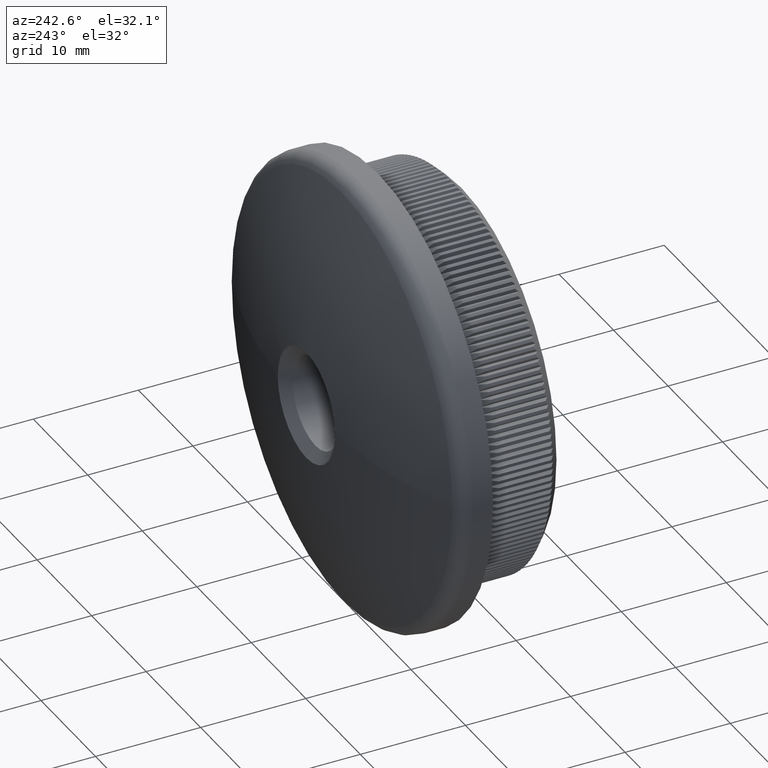
[diagram: clean part render]
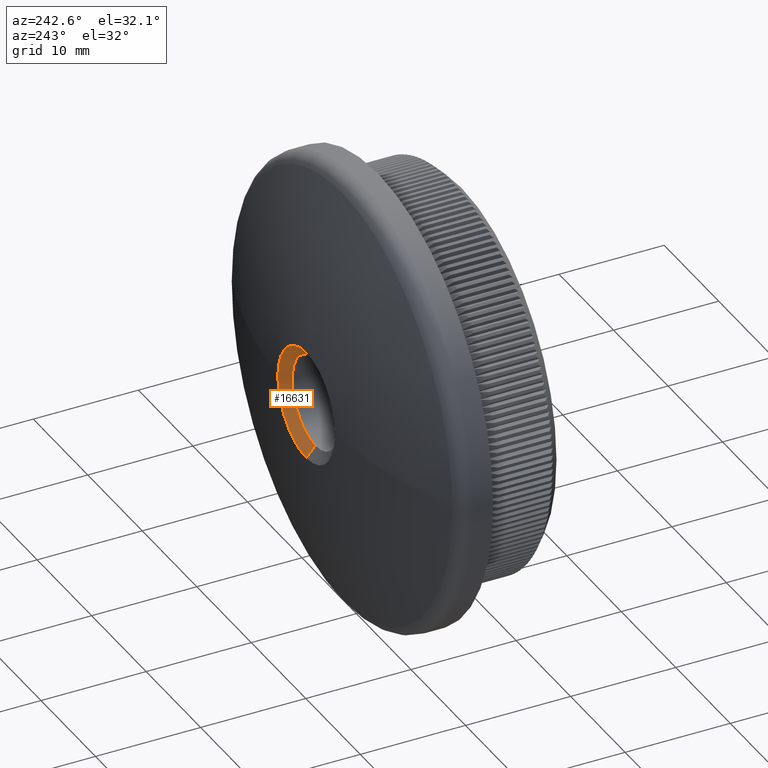
[diagram: same view with one face highlighted and labeled with its STEP entity id]
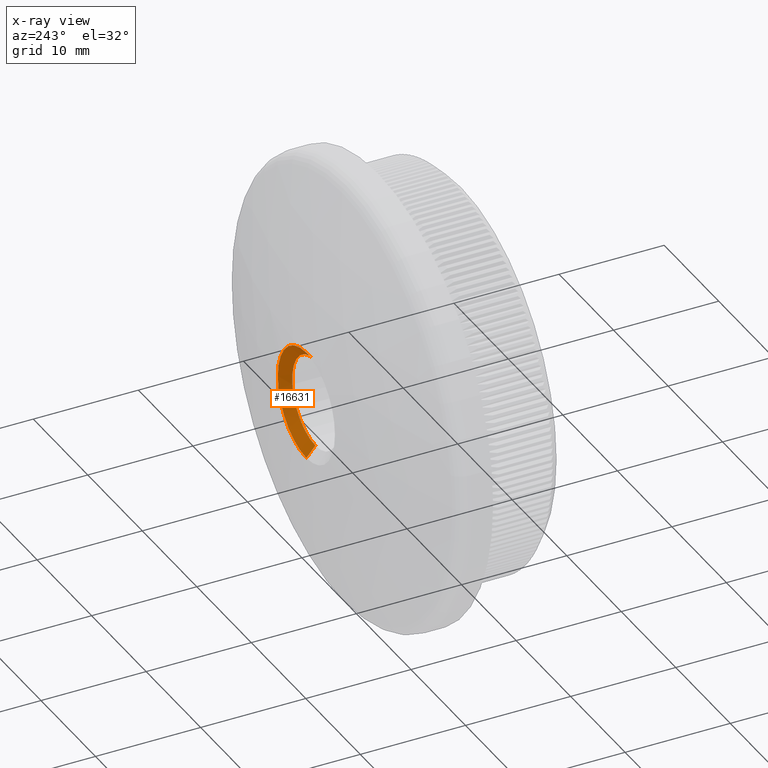
[diagram: x-ray of the same camera — body ghosted, the highlighted face saturated]
A machine part, auxiliary view. The second image highlights one B-rep face of the part: STEP entity #16631.
The next image is the same camera in x-ray: the body ghosted, the highlighted face saturated — about 0% of this face is hidden behind the body in this view.
In plain terms, the highlighted conical surface has half-angle 49.189 deg.
Its self-contained STEP definition (entity closure, byte-faithful):
#141 = DIRECTION ( 'NONE',  ( 9.268998778728534100E-017, 0.6535640784383101000, -0.7568711880994563000 ) ) ;
#421 = LINE ( 'NONE', #16505, #26385 ) ;
#507 = DIRECTION ( 'NONE',  ( 0.0000000000000000000, 0.0000000000000000000, -1.000000000000000000 ) ) ;
#836 = VECTOR ( 'NONE', #17871, 1000.000000000000000 ) ;
#1547 = VERTEX_POINT ( 'NONE', #25073 ) ;
#1896 = ORIENTED_EDGE ( 'NONE', *, *, #4142, .F. ) ;
#2016 = AXIS2_PLACEMENT_3D ( 'NONE', #30724, #6765, #23349 ) ;
#2193 = DIRECTION ( 'NONE',  ( -0.0000000000000000000, -1.000000000000000000, -0.0000000000000000000 ) ) ;
#3008 = ORIENTED_EDGE ( 'NONE', *, *, #21829, .F. ) ;
#3633 = AXIS2_PLACEMENT_3D ( 'NONE', #23437, #11909, #4580 ) ;
#3741 = CARTESIAN_POINT ( 'NONE',  ( 6.415047297948654100E-016, 14.76370357909867400, -5.238283644243433700 ) ) ;
#4142 = EDGE_CURVE ( 'NONE', #20970, #14887, #421, .T. ) ;
#4580 = DIRECTION ( 'NONE',  ( 0.0000000000000000000, 0.0000000000000000000, 1.000000000000000000 ) ) ;
#4881 = CARTESIAN_POINT ( 'NONE',  ( 0.0000000000000000000, 13.91031306913948000, -4.249999999999995600 ) ) ;
#4890 = AXIS2_PLACEMENT_3D ( 'NONE', #23678, #2193, #18810 ) ;
#5262 = DIRECTION ( 'NONE',  ( -0.0000000000000000000, -1.000000000000000000, -0.0000000000000000000 ) ) ;
#6765 = DIRECTION ( 'NONE',  ( 0.0000000000000000000, 1.000000000000000000, 0.0000000000000000000 ) ) ;
#7164 = EDGE_CURVE ( 'NONE', #1547, #20970, #19217, .T. ) ;
#7484 = VERTEX_POINT ( 'NONE', #24354 ) ;
#7653 = FACE_OUTER_BOUND ( 'NONE', #27947, .T. ) ;
#8215 = LINE ( 'NONE', #22037, #836 ) ;
#9141 = VERTEX_POINT ( 'NONE', #10497 ) ;
#10497 = CARTESIAN_POINT ( 'NONE',  ( 5.238283644243428400, 14.76370357909867400, 0.0000000000000000000 ) ) ;
#10516 = ORIENTED_EDGE ( 'NONE', *, *, #7164, .F. ) ;
#11343 = ORIENTED_EDGE ( 'NONE', *, *, #22982, .T. ) ;
#11909 = DIRECTION ( 'NONE',  ( 0.0000000000000000000, 1.000000000000000000, 0.0000000000000000000 ) ) ;
#14887 = VERTEX_POINT ( 'NONE', #3741 ) ;
#16505 = CARTESIAN_POINT ( 'NONE',  ( 5.204748896376246800E-016, 13.91031306913948000, -4.249999999999995600 ) ) ;
#16631 = ADVANCED_FACE ( 'NONE', ( #7653 ), #19529, .F. ) ;
#17871 = DIRECTION ( 'NONE',  ( 0.0000000000000000000, 0.6535640784383101000, 0.7568711880994563000 ) ) ;
#18810 = DIRECTION ( 'NONE',  ( 0.0000000000000000000, 0.0000000000000000000, -1.000000000000000000 ) ) ;
#19217 = CIRCLE ( 'NONE', #3633, 4.249999999999995600 ) ;
#19529 = CONICAL_SURFACE ( 'NONE', #2016, 4.249999999999995600, 0.8585124449213331600 ) ;
#20970 = VERTEX_POINT ( 'NONE', #4881 ) ;
#21829 = EDGE_CURVE ( 'NONE', #9141, #7484, #27575, .T. ) ;
#21971 = CARTESIAN_POINT ( 'NONE',  ( 0.0000000000000000000, 14.76370357909867400, 0.0000000000000000000 ) ) ;
#22037 = CARTESIAN_POINT ( 'NONE',  ( 0.0000000000000000000, 13.91031306913948000, 4.249999999999995600 ) ) ;
#22357 = EDGE_CURVE ( 'NONE', #14887, #9141, #23118, .T. ) ;
#22379 = AXIS2_PLACEMENT_3D ( 'NONE', #21971, #5262, #507 ) ;
#22715 = ORIENTED_EDGE ( 'NONE', *, *, #22357, .F. ) ;
#22982 = EDGE_CURVE ( 'NONE', #1547, #7484, #8215, .T. ) ;
#23118 = CIRCLE ( 'NONE', #22379, 5.238283644243428400 ) ;
#23349 = DIRECTION ( 'NONE',  ( 0.0000000000000000000, 0.0000000000000000000, 1.000000000000000000 ) ) ;
#23437 = CARTESIAN_POINT ( 'NONE',  ( 0.0000000000000000000, 13.91031306913948000, 0.0000000000000000000 ) ) ;
#23678 = CARTESIAN_POINT ( 'NONE',  ( 0.0000000000000000000, 14.76370357909867400, 0.0000000000000000000 ) ) ;
#24354 = CARTESIAN_POINT ( 'NONE',  ( 0.0000000000000000000, 14.76370357909867400, 5.238283644243433700 ) ) ;
#25073 = CARTESIAN_POINT ( 'NONE',  ( 5.204748896376246800E-016, 13.91031306913948000, 4.249999999999995600 ) ) ;
#26385 = VECTOR ( 'NONE', #141, 1000.000000000000000 ) ;
#27575 = CIRCLE ( 'NONE', #4890, 5.238283644243428400 ) ;
#27947 = EDGE_LOOP ( 'NONE', ( #1896, #10516, #11343, #3008, #22715 ) ) ;
#30724 = CARTESIAN_POINT ( 'NONE',  ( 0.0000000000000000000, 13.91031306913948000, 0.0000000000000000000 ) ) ;